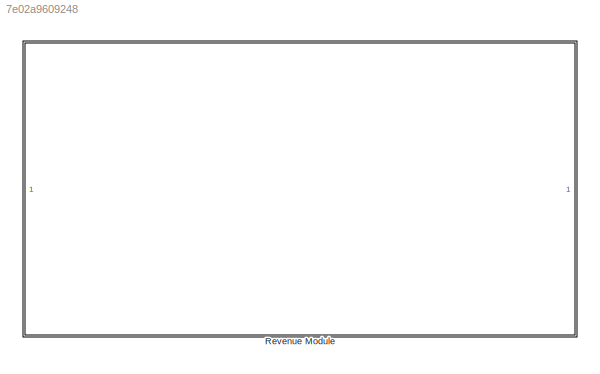
MODEL slx_7e02a9609248
KIND library
CONFIG AbsTol = auto
CONFIG EnableMultiTasking = off
CONFIG FixedStep = auto
CONFIG MaxStep = auto
CONFIG MinStep = auto
CONFIG RelTol = 1e-3
CONFIG SampleTimeConstraint = Unconstrained
CONFIG SolverName = VariableStepAuto
CONFIG StartTime = 0.0
CONFIG StopTime = 10.0
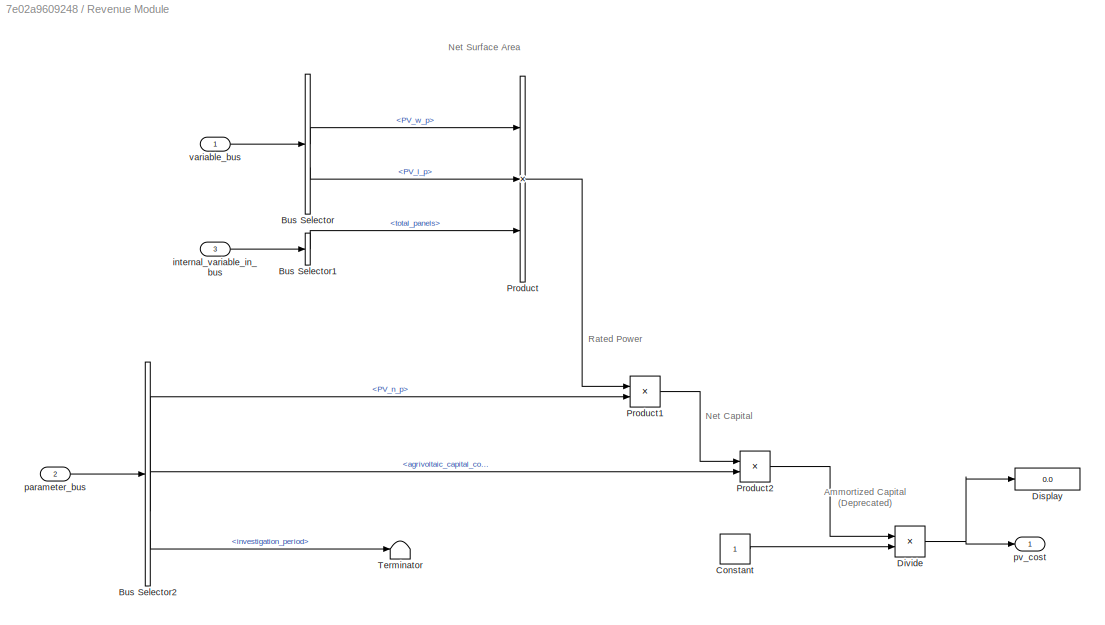
BLOCK [SubSystem] Revenue Module
BLOCK [BusSelector] Revenue Module/Bus Selector
  OutputSignals = PV_w_p,PV_l_p
BLOCK [BusSelector] Revenue Module/Bus Selector1
  OutputSignals = energy_per_year.total_panels
BLOCK [BusSelector] Revenue Module/Bus Selector2
  OutputSignals = PV_n_p,agrivoltaic_capital_cost_rate,investigation_period
BLOCK [Constant] Revenue Module/Constant
BLOCK [Display] Revenue Module/Display
  Decimation = 1
BLOCK [Product] Revenue Module/Divide
  Inputs = */
BLOCK [Product] Revenue Module/Product
  Inputs = 3
BLOCK [Product] Revenue Module/Product1
BLOCK [Product] Revenue Module/Product2
BLOCK [Terminator] Revenue Module/Terminator
BLOCK [Inport] Revenue Module/internal_variable_in_bus
  Port = 3
BLOCK [Inport] Revenue Module/parameter_bus
  Port = 2
BLOCK [Outport] Revenue Module/pv_cost
BLOCK [Inport] Revenue Module/variable_bus
ANNOTATION Revenue Module: Ammortized Capital (Deprecated)
ANNOTATION Revenue Module: Net Capital
ANNOTATION Revenue Module: Net Surface Area
ANNOTATION Revenue Module: Rated Power
LINE Revenue Module/Bus Selector1:1 -> Revenue Module/Product:3
LINE Revenue Module/Bus Selector2:1 -> Revenue Module/Product1:2
LINE Revenue Module/Bus Selector2:2 -> Revenue Module/Product2:2
LINE Revenue Module/Bus Selector2:3 -> Revenue Module/Terminator:1
LINE Revenue Module/Bus Selector:1 -> Revenue Module/Product:1
LINE Revenue Module/Bus Selector:2 -> Revenue Module/Product:2
LINE Revenue Module/Constant:1 -> Revenue Module/Divide:2
NET Revenue Module/Divide:1 -> Revenue Module/Display:1, Revenue Module/pv_cost:1
LINE Revenue Module/Product1:1 -> Revenue Module/Product2:1
LINE Revenue Module/Product2:1 -> Revenue Module/Divide:1
LINE Revenue Module/Product:1 -> Revenue Module/Product1:1
LINE Revenue Module/internal_variable_in_bus:1 -> Revenue Module/Bus Selector1:1
LINE Revenue Module/parameter_bus:1 -> Revenue Module/Bus Selector2:1
LINE Revenue Module/variable_bus:1 -> Revenue Module/Bus Selector:1
note: NET lines group one-source signal fan-out (src -> all destinations, sorted); 1:1 wires keep LINE
